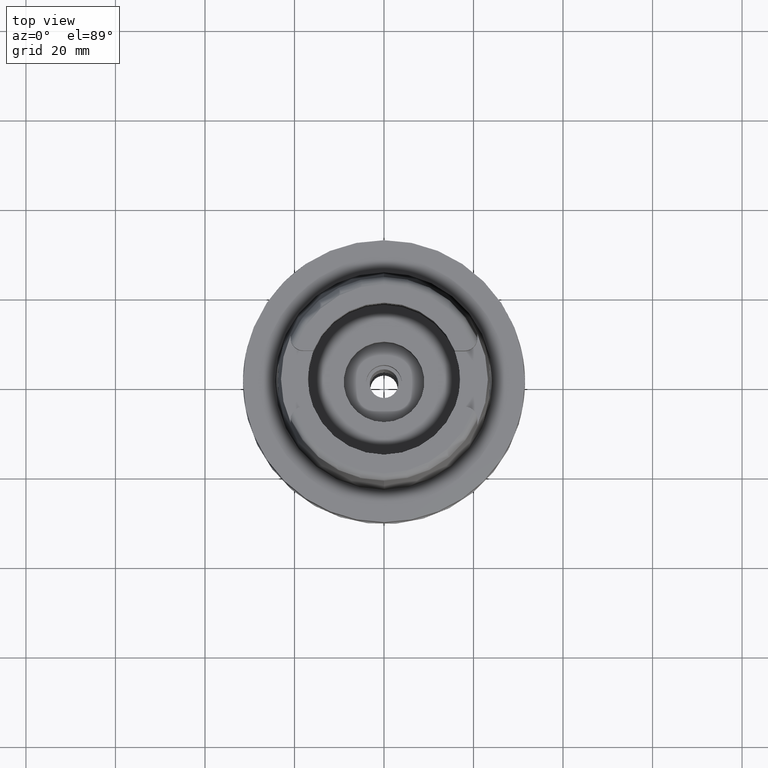
[diagram: clean part render]
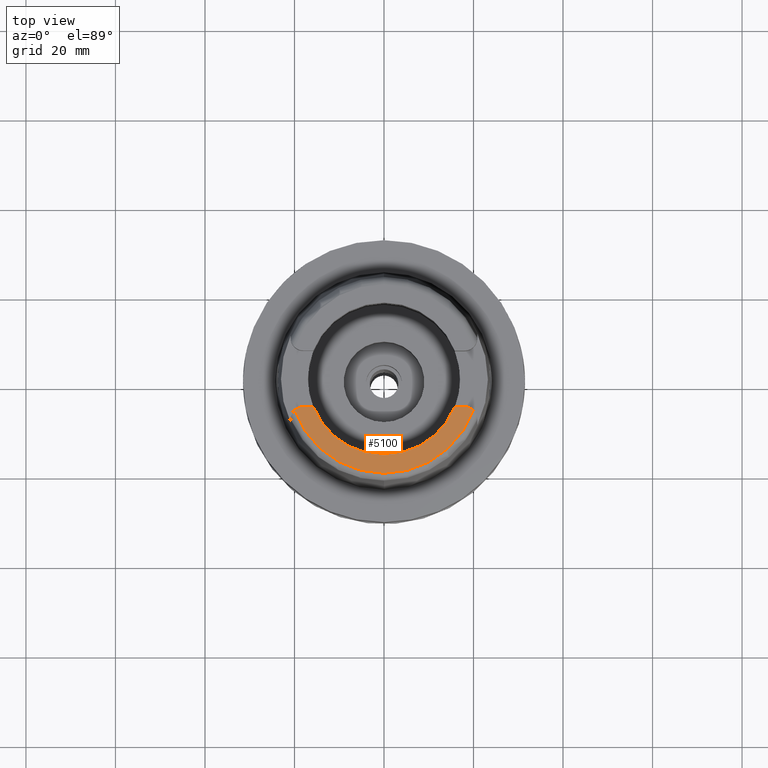
[diagram: same view with one face highlighted and labeled with its STEP entity id]
A machine part, top view. The second image highlights one B-rep face of the part: STEP entity #5100.
In plain terms, the highlighted planar face has unit normal (0, 0, 1).
Its self-contained STEP definition (entity closure, byte-faithful):
#71 = DIRECTION ( 'NONE',  ( -1.000000000000000000, 8.644330667353000255E-14, 0.0000000000000000000 ) ) ;
#113 = VERTEX_POINT ( 'NONE', #4107 ) ;
#184 = AXIS2_PLACEMENT_3D ( 'NONE', #1908, #1380, #3065 ) ;
#190 = EDGE_CURVE ( 'NONE', #1319, #113, #3847, .T. ) ;
#260 = CARTESIAN_POINT ( 'NONE',  ( 0.0000000000000000000, -17.00000000000000000, 32.00000000000000000 ) ) ;
#262 = DIRECTION ( 'NONE',  ( 0.0000000000000000000, 0.0000000000000000000, -1.000000000000000000 ) ) ;
#380 = CARTESIAN_POINT ( 'NONE',  ( -17.98999999999999844, -9.150000000000000355, 32.00000000000000000 ) ) ;
#583 = AXIS2_PLACEMENT_3D ( 'NONE', #1571, #262, #1930 ) ;
#932 = DIRECTION ( 'NONE',  ( 0.0000000000000000000, -1.000000000000000000, 0.0000000000000000000 ) ) ;
#976 = ORIENTED_EDGE ( 'NONE', *, *, #2058, .F. ) ;
#1047 = FACE_OUTER_BOUND ( 'NONE', #2615, .T. ) ;
#1152 = CIRCLE ( 'NONE', #3766, 17.00000000000000000 ) ;
#1188 = VERTEX_POINT ( 'NONE', #4501 ) ;
#1255 = VERTEX_POINT ( 'NONE', #4102 ) ;
#1319 = VERTEX_POINT ( 'NONE', #1712 ) ;
#1380 = DIRECTION ( 'NONE',  ( 0.0000000000000000000, 0.0000000000000000000, -1.000000000000000000 ) ) ;
#1382 = AXIS2_PLACEMENT_3D ( 'NONE', #380, #3323, #3517 ) ;
#1486 = DIRECTION ( 'NONE',  ( 1.000000000000000000, 0.0000000000000000000, 0.0000000000000000000 ) ) ;
#1494 = DIRECTION ( 'NONE',  ( -1.000000000000000000, -8.806665515566000284E-14, 0.0000000000000000000 ) ) ;
#1571 = CARTESIAN_POINT ( 'NONE',  ( 0.0000000000000000000, 0.0000000000000000000, 32.00000000000000000 ) ) ;
#1596 = EDGE_CURVE ( 'NONE', #1188, #1255, #2190, .T. ) ;
#1651 = CARTESIAN_POINT ( 'NONE',  ( 0.0000000000000000000, 0.0000000000000000000, 32.00000000000000000 ) ) ;
#1712 = CARTESIAN_POINT ( 'NONE',  ( -19.94181952027000193, -7.032265229004000417, 32.00000000000000000 ) ) ;
#1792 = ORIENTED_EDGE ( 'NONE', *, *, #4073, .F. ) ;
#1908 = CARTESIAN_POINT ( 'NONE',  ( 17.98999999999999844, -9.150000000000000355, 32.00000000000000000 ) ) ;
#1930 = DIRECTION ( 'NONE',  ( 0.9430797096105165700, -0.3325667772357058793, 0.0000000000000000000 ) ) ;
#1993 = CIRCLE ( 'NONE', #583, 21.14542314616000951 ) ;
#2058 = EDGE_CURVE ( 'NONE', #2412, #2961, #1152, .T. ) ;
#2078 = ORIENTED_EDGE ( 'NONE', *, *, #1596, .F. ) ;
#2190 = CIRCLE ( 'NONE', #184, 2.880000000000000782 ) ;
#2376 = CARTESIAN_POINT ( 'NONE',  ( 17.98999999999999844, -6.270000000000000462, 32.00000000000000000 ) ) ;
#2412 = VERTEX_POINT ( 'NONE', #260 ) ;
#2539 = CARTESIAN_POINT ( 'NONE',  ( 0.0000000000000000000, 0.0000000000000000000, 32.00000000000000000 ) ) ;
#2615 = EDGE_LOOP ( 'NONE', ( #1792, #2078, #4926, #976, #2756, #2705, #2747 ) ) ;
#2705 = ORIENTED_EDGE ( 'NONE', *, *, #3395, .T. ) ;
#2747 = ORIENTED_EDGE ( 'NONE', *, *, #190, .F. ) ;
#2756 = ORIENTED_EDGE ( 'NONE', *, *, #3721, .F. ) ;
#2961 = VERTEX_POINT ( 'NONE', #3772 ) ;
#3007 = LINE ( 'NONE', #4346, #5146 ) ;
#3024 = DIRECTION ( 'NONE',  ( 0.0000000000000000000, 0.0000000000000000000, 1.000000000000000000 ) ) ;
#3065 = DIRECTION ( 'NONE',  ( 0.0000000000000000000, 1.000000000000000000, 0.0000000000000000000 ) ) ;
#3133 = CARTESIAN_POINT ( 'NONE',  ( 0.0000000000000000000, 0.0000000000000000000, 32.00000000000000000 ) ) ;
#3218 = DIRECTION ( 'NONE',  ( 0.0000000000000000000, 0.0000000000000000000, 1.000000000000000000 ) ) ;
#3323 = DIRECTION ( 'NONE',  ( 0.0000000000000000000, 0.0000000000000000000, -1.000000000000000000 ) ) ;
#3393 = DIRECTION ( 'NONE',  ( 0.0000000000000000000, 0.0000000000000000000, 1.000000000000000000 ) ) ;
#3395 = EDGE_CURVE ( 'NONE', #5226, #113, #3007, .T. ) ;
#3517 = DIRECTION ( 'NONE',  ( -0.6777151112055670445, 0.7353245732624646980, 0.0000000000000000000 ) ) ;
#3550 = PLANE ( 'NONE',  #5179 ) ;
#3574 = CIRCLE ( 'NONE', #5063, 17.00000000000000000 ) ;
#3642 = LINE ( 'NONE', #2376, #5159 ) ;
#3721 = EDGE_CURVE ( 'NONE', #5226, #2412, #3574, .T. ) ;
#3750 = DIRECTION ( 'NONE',  ( -0.9294994374136111848, -0.3688235294118045182, 0.0000000000000000000 ) ) ;
#3766 = AXIS2_PLACEMENT_3D ( 'NONE', #1651, #3024, #932 ) ;
#3772 = CARTESIAN_POINT ( 'NONE',  ( 15.80149043602999903, -6.270000000000000462, 32.00000000000000000 ) ) ;
#3847 = CIRCLE ( 'NONE', #1382, 2.880000000000001670 ) ;
#3870 = CARTESIAN_POINT ( 'NONE',  ( -15.80149043602999903, -6.270000000000000462, 32.00000000000000000 ) ) ;
#3982 = EDGE_CURVE ( 'NONE', #1188, #2961, #3642, .T. ) ;
#4073 = EDGE_CURVE ( 'NONE', #1255, #1319, #1993, .T. ) ;
#4102 = CARTESIAN_POINT ( 'NONE',  ( 19.94181952027000193, -7.032265229004000417, 32.00000000000000000 ) ) ;
#4107 = CARTESIAN_POINT ( 'NONE',  ( -17.98999999999999844, -6.270000000000000462, 32.00000000000000000 ) ) ;
#4346 = CARTESIAN_POINT ( 'NONE',  ( -15.80149043602999903, -6.270000000000000462, 32.00000000000000000 ) ) ;
#4501 = CARTESIAN_POINT ( 'NONE',  ( 17.98999999999999844, -6.270000000000000462, 32.00000000000000000 ) ) ;
#4926 = ORIENTED_EDGE ( 'NONE', *, *, #3982, .T. ) ;
#5063 = AXIS2_PLACEMENT_3D ( 'NONE', #2539, #3393, #3750 ) ;
#5100 = ADVANCED_FACE ( 'NONE', ( #1047 ), #3550, .T. ) ;
#5146 = VECTOR ( 'NONE', #71, 1000.000000000000000 ) ;
#5159 = VECTOR ( 'NONE', #1494, 1000.000000000000000 ) ;
#5179 = AXIS2_PLACEMENT_3D ( 'NONE', #3133, #3218, #1486 ) ;
#5226 = VERTEX_POINT ( 'NONE', #3870 ) ;